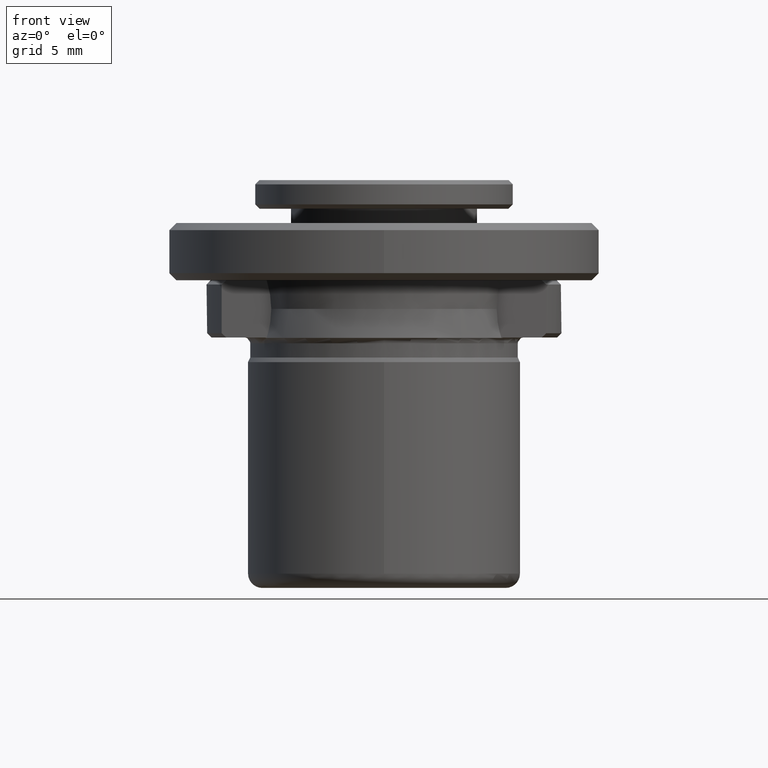
[diagram: clean part render]
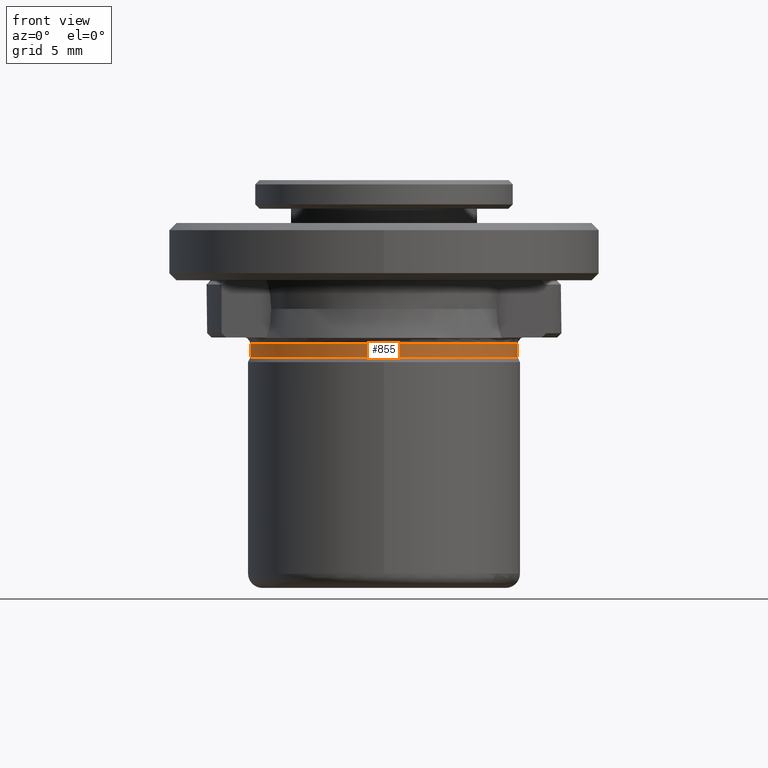
[diagram: same view with one face highlighted and labeled with its STEP entity id]
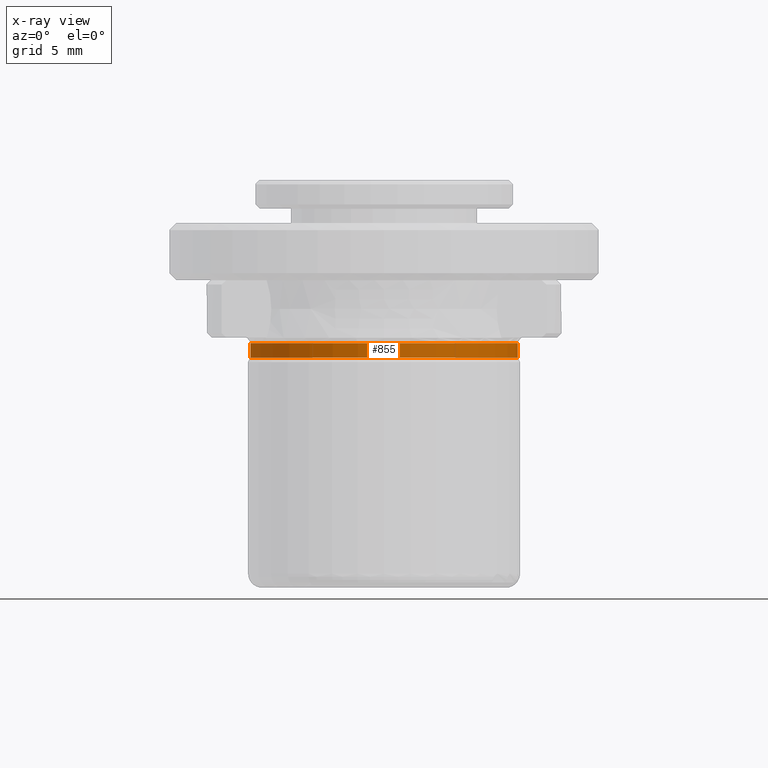
[diagram: x-ray of the same camera — body ghosted, the highlighted face saturated]
A machine part, front view. The second image highlights one B-rep face of the part: STEP entity #855.
The next image is the same camera in x-ray: the body ghosted, the highlighted face saturated — about 0% of this face is hidden behind the body in this view.
In plain terms, the highlighted cylindrical surface (partial cylindrical patch) has radius 9.35 mm, axis along (0, -0, 1).
Its self-contained STEP definition (entity closure, byte-faithful):
#52 = CIRCLE ( 'NONE', #1485, 9.350000000000003200 ) ;
#54 = DIRECTION ( 'NONE',  ( -1.000000000000000000, 0.0000000000000000000, 0.0000000000000000000 ) ) ;
#83 = AXIS2_PLACEMENT_3D ( 'NONE', #1748, #901, #54 ) ;
#86 = CARTESIAN_POINT ( 'NONE',  ( -9.350000000108330800, 1.145044757216041900E-015, 4.349999999879580400 ) ) ;
#99 = ORIENTED_EDGE ( 'NONE', *, *, #717, .T. ) ;
#145 = DIRECTION ( 'NONE',  ( 0.0000000000000000000, -0.0000000000000000000, 1.000000000000000000 ) ) ;
#163 = CIRCLE ( 'NONE', #83, 9.350000000108330800 ) ;
#222 = CARTESIAN_POINT ( 'NONE',  ( -9.350000000000003200, 0.0000000000000000000, 3.351676037999996800 ) ) ;
#267 = CARTESIAN_POINT ( 'NONE',  ( 9.350000000108330800, 0.0000000000000000000, 4.349999999879580400 ) ) ;
#299 = CARTESIAN_POINT ( 'NONE',  ( -9.350000000000003200, 1.145044757202775600E-015, 3.351676037999999500 ) ) ;
#322 = LINE ( 'NONE', #978, #1073 ) ;
#472 = CARTESIAN_POINT ( 'NONE',  ( 9.350000000000003200, 1.154229608196380700E-015, 3.351676037999996800 ) ) ;
#511 = VERTEX_POINT ( 'NONE', #472 ) ;
#527 = CYLINDRICAL_SURFACE ( 'NONE', #1182, 9.350000000000003200 ) ;
#653 = DIRECTION ( 'NONE',  ( -0.0000000000000000000, -0.0000000000000000000, -1.000000000000000000 ) ) ;
#717 = EDGE_CURVE ( 'NONE', #511, #1621, #322, .T. ) ;
#735 = EDGE_CURVE ( 'NONE', #919, #994, #1730, .T. ) ;
#831 = EDGE_LOOP ( 'NONE', ( #1309, #1439, #99, #1483 ) ) ;
#855 = ADVANCED_FACE ( 'NONE', ( #1642 ), #527, .T. ) ;
#901 = DIRECTION ( 'NONE',  ( 0.0000000000000000000, -0.0000000000000000000, -1.000000000000000000 ) ) ;
#908 = CARTESIAN_POINT ( 'NONE',  ( 0.0000000000000000000, 0.0000000000000000000, 3.351676037999999500 ) ) ;
#919 = VERTEX_POINT ( 'NONE', #222 ) ;
#957 = EDGE_CURVE ( 'NONE', #511, #919, #52, .T. ) ;
#978 = CARTESIAN_POINT ( 'NONE',  ( 9.350000000000003200, 0.0000000000000000000, 3.351676037999999500 ) ) ;
#994 = VERTEX_POINT ( 'NONE', #86 ) ;
#1053 = DIRECTION ( 'NONE',  ( 0.0000000000000000000, -0.0000000000000000000, 1.000000000000000000 ) ) ;
#1073 = VECTOR ( 'NONE', #145, 1000.000000000000000 ) ;
#1182 = AXIS2_PLACEMENT_3D ( 'NONE', #908, #1053, #1764 ) ;
#1258 = EDGE_CURVE ( 'NONE', #1621, #994, #163, .T. ) ;
#1269 = DIRECTION ( 'NONE',  ( 0.0000000000000000000, -0.0000000000000000000, 1.000000000000000000 ) ) ;
#1309 = ORIENTED_EDGE ( 'NONE', *, *, #735, .F. ) ;
#1392 = VECTOR ( 'NONE', #1269, 1000.000000000000000 ) ;
#1439 = ORIENTED_EDGE ( 'NONE', *, *, #957, .F. ) ;
#1483 = ORIENTED_EDGE ( 'NONE', *, *, #1258, .T. ) ;
#1485 = AXIS2_PLACEMENT_3D ( 'NONE', #1491, #653, #1632 ) ;
#1491 = CARTESIAN_POINT ( 'NONE',  ( 0.0000000000000000000, 0.0000000000000000000, 3.351676037999996800 ) ) ;
#1621 = VERTEX_POINT ( 'NONE', #267 ) ;
#1632 = DIRECTION ( 'NONE',  ( 1.000000000000000000, 0.0000000000000000000, 2.782978838465465100E-016 ) ) ;
#1642 = FACE_OUTER_BOUND ( 'NONE', #831, .T. ) ;
#1730 = LINE ( 'NONE', #299, #1392 ) ;
#1748 = CARTESIAN_POINT ( 'NONE',  ( 0.0000000000000000000, 0.0000000000000000000, 4.349999999879580400 ) ) ;
#1764 = DIRECTION ( 'NONE',  ( 1.000000000000000000, 0.0000000000000000000, 0.0000000000000000000 ) ) ;